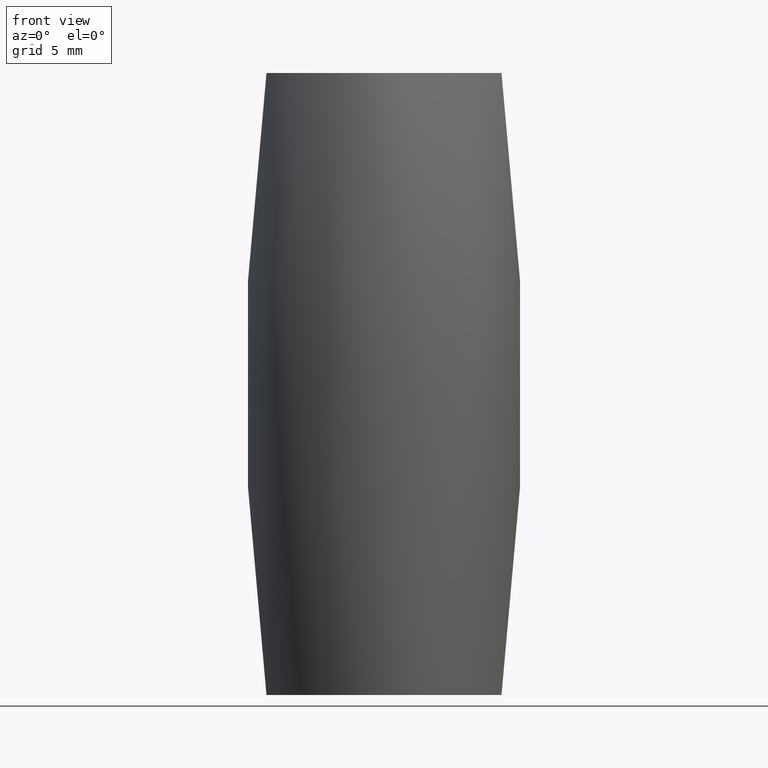
[diagram: clean part render]
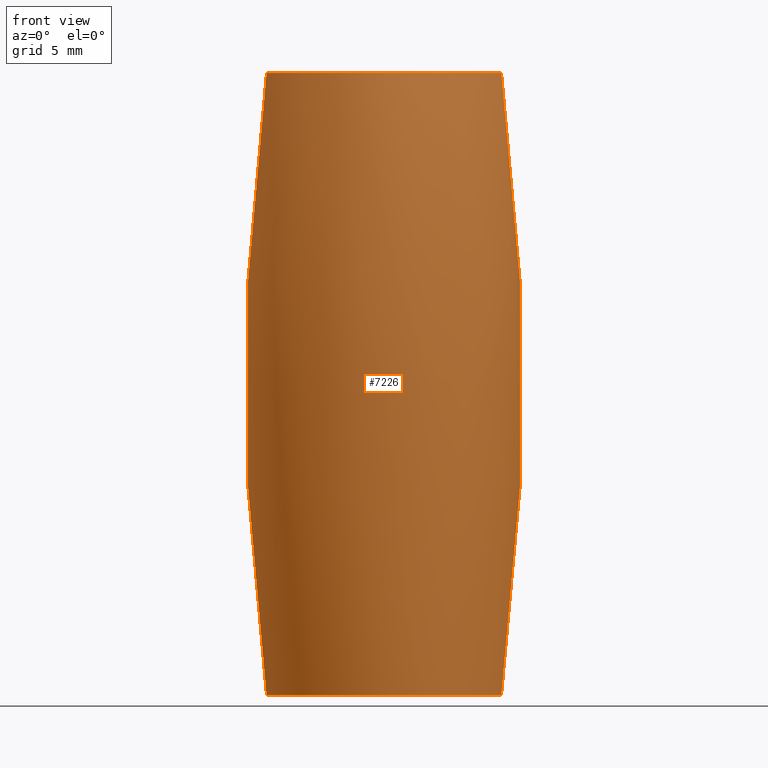
[diagram: same view with one face highlighted and labeled with its STEP entity id]
A machine part, front view. The second image highlights one B-rep face of the part: STEP entity #7226.
In plain terms, the highlighted toroidal blend (fillet) surface has major radius 159.5 mm and minor (blend) radius 169.5 mm.
Its self-contained STEP definition (entity closure, byte-faithful):
#317 = VERTEX_POINT ( 'NONE', #12329 ) ;
#983 = EDGE_CURVE ( 'NONE', #11604, #2156, #15416, .T. ) ;
#2156 = VERTEX_POINT ( 'NONE', #4795 ) ;
#2158 = AXIS2_PLACEMENT_3D ( 'NONE', #16594, #4725, #13770 ) ;
#3951 = EDGE_LOOP ( 'NONE', ( #15037, #13786, #16574, #14647 ) ) ;
#4200 = DIRECTION ( 'NONE',  ( 0.000000000000000000, 0.000000000000000000, -1.000000000000000000 ) ) ;
#4305 = CARTESIAN_POINT ( 'NONE',  ( -159.4999999999996021, 0.000000000000000000, 0.000000000000000000 ) ) ;
#4725 = DIRECTION ( 'NONE',  ( 1.224646799147353207E-16, 1.000000000000000000, 0.000000000000000000 ) ) ;
#4795 = CARTESIAN_POINT ( 'NONE',  ( 8.500000000000007105, 0.000000000000000000, 22.50000000000001776 ) ) ;
#4831 = DIRECTION ( 'NONE',  ( 1.000000000000000000, 0.000000000000000000, 0.000000000000000000 ) ) ;
#6486 = AXIS2_PLACEMENT_3D ( 'NONE', #4305, #14703, #4200 ) ;
#7152 = EDGE_CURVE ( 'NONE', #317, #11604, #15553, .T. ) ;
#7226 = ADVANCED_FACE ( 'NONE', ( #12126 ), #13341, .T. ) ;
#7313 = VERTEX_POINT ( 'NONE', #10211 ) ;
#8241 = AXIS2_PLACEMENT_3D ( 'NONE', #10946, #15919, #8308 ) ;
#8308 = DIRECTION ( 'NONE',  ( 1.000000000000000000, 0.000000000000000000, 0.000000000000000000 ) ) ;
#9646 = CIRCLE ( 'NONE', #6486, 169.4999999999996305 ) ;
#9782 = AXIS2_PLACEMENT_3D ( 'NONE', #12639, #13924, #4831 ) ;
#10211 = CARTESIAN_POINT ( 'NONE',  ( 8.499999999999996447, 0.000000000000000000, -22.50000000000000000 ) ) ;
#10322 = DIRECTION ( 'NONE',  ( 1.000000000000000000, 0.000000000000000000, 0.000000000000000000 ) ) ;
#10946 = CARTESIAN_POINT ( 'NONE',  ( 0.000000000000000000, 0.000000000000000000, -22.50000000000000000 ) ) ;
#11279 = EDGE_CURVE ( 'NONE', #317, #7313, #16516, .T. ) ;
#11604 = VERTEX_POINT ( 'NONE', #16582 ) ;
#12126 = FACE_OUTER_BOUND ( 'NONE', #3951, .T. ) ;
#12329 = CARTESIAN_POINT ( 'NONE',  ( -8.499999999999996447, 1.040949779275250337E-15, -22.50000000000000000 ) ) ;
#12413 = EDGE_CURVE ( 'NONE', #7313, #2156, #9646, .T. ) ;
#12639 = CARTESIAN_POINT ( 'NONE',  ( 0.000000000000000000, 0.000000000000000000, 22.50000000000001776 ) ) ;
#13341 = TOROIDAL_SURFACE ( 'NONE', #16628, -159.4999999999996021, 169.4999999999996305 ) ;
#13770 = DIRECTION ( 'NONE',  ( -1.000000000000000000, 1.224646799147353207E-16, 0.000000000000000000 ) ) ;
#13786 = ORIENTED_EDGE ( 'NONE', *, *, #11279, .T. ) ;
#13924 = DIRECTION ( 'NONE',  ( -0.000000000000000000, -0.000000000000000000, 1.000000000000000000 ) ) ;
#14046 = DIRECTION ( 'NONE',  ( -0.000000000000000000, -0.000000000000000000, 1.000000000000000000 ) ) ;
#14222 = CARTESIAN_POINT ( 'NONE',  ( 0.000000000000000000, 0.000000000000000000, 0.000000000000000000 ) ) ;
#14647 = ORIENTED_EDGE ( 'NONE', *, *, #983, .F. ) ;
#14703 = DIRECTION ( 'NONE',  ( 0.000000000000000000, -1.000000000000000000, 0.000000000000000000 ) ) ;
#15037 = ORIENTED_EDGE ( 'NONE', *, *, #7152, .F. ) ;
#15416 = CIRCLE ( 'NONE', #9782, 8.500000000000007105 ) ;
#15553 = CIRCLE ( 'NONE', #2158, 169.4999999999996305 ) ;
#15919 = DIRECTION ( 'NONE',  ( -0.000000000000000000, -0.000000000000000000, 1.000000000000000000 ) ) ;
#16516 = CIRCLE ( 'NONE', #8241, 8.499999999999996447 ) ;
#16574 = ORIENTED_EDGE ( 'NONE', *, *, #12413, .T. ) ;
#16582 = CARTESIAN_POINT ( 'NONE',  ( -8.500000000000007105, 1.040949779275251126E-15, 22.50000000000001776 ) ) ;
#16594 = CARTESIAN_POINT ( 'NONE',  ( 159.4999999999996021, -1.953311644640023720E-14, 0.000000000000000000 ) ) ;
#16628 = AXIS2_PLACEMENT_3D ( 'NONE', #14222, #14046, #10322 ) ;